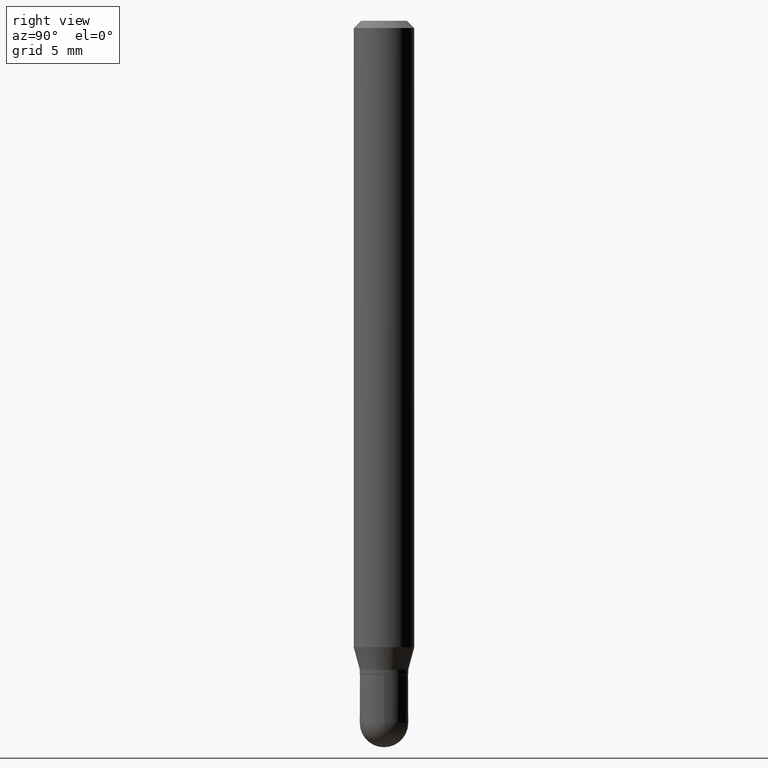
[diagram: clean part render]
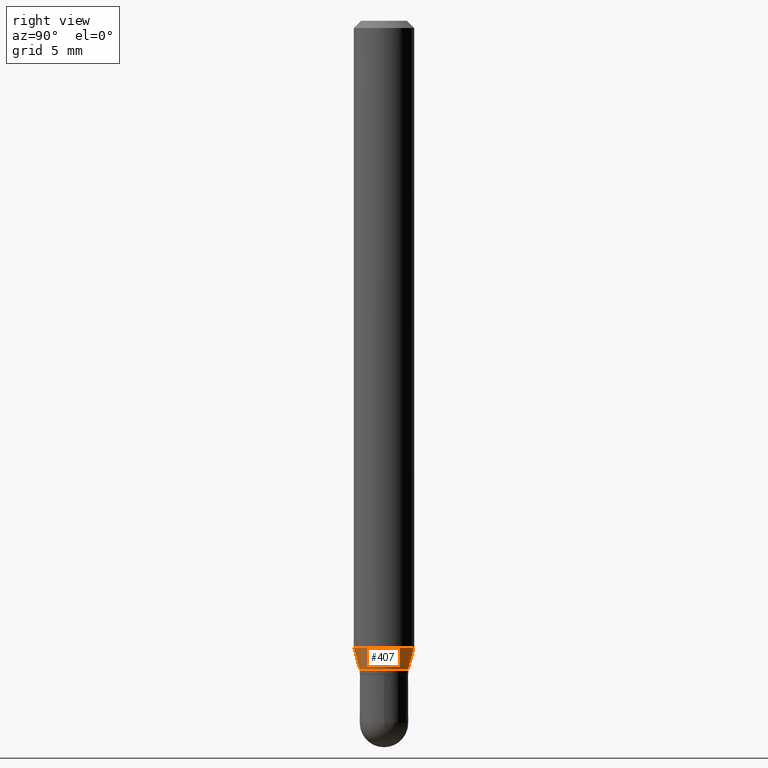
[diagram: same view with one face highlighted and labeled with its STEP entity id]
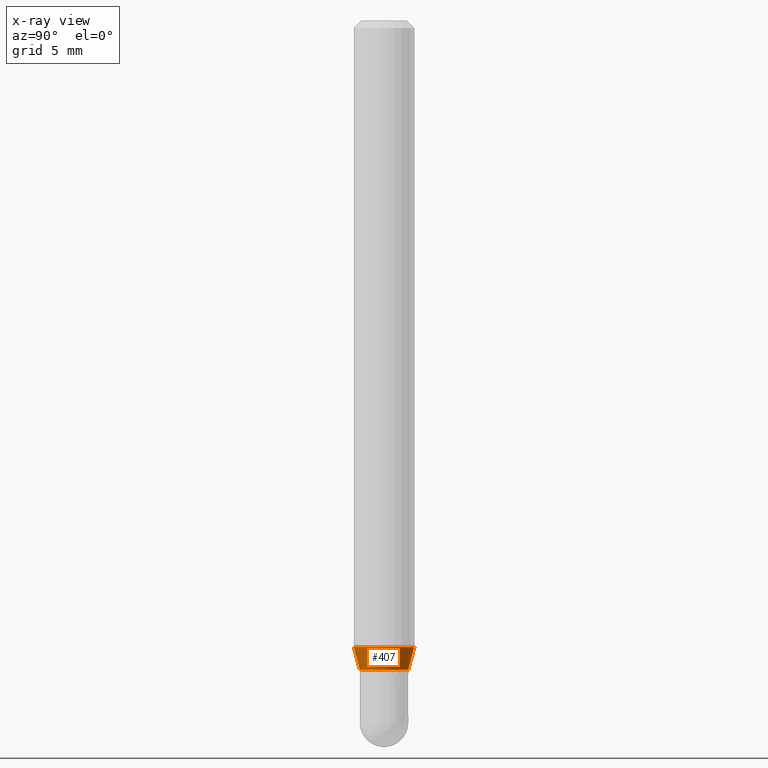
[diagram: x-ray of the same camera — body ghosted, the highlighted face saturated]
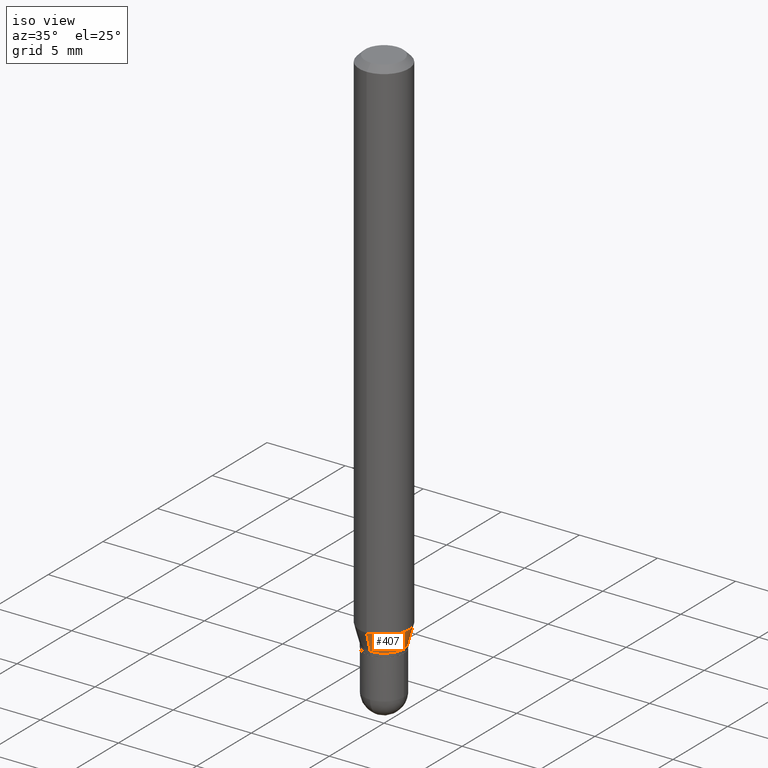
[diagram: same view with one face highlighted and labeled with its STEP entity id]
A machine part, right view. The second image highlights one B-rep face of the part: STEP entity #407.
The next image is the same camera in x-ray: the body ghosted, the highlighted face saturated — about 0% of this face is hidden behind the body in this view.
A second angle (iso view) of the same face is appended — the face is thin or edge-on in the first view.
In plain terms, the highlighted conical surface has half-angle 15 deg.
Its self-contained STEP definition (entity closure, byte-faithful):
#45 = VERTEX_POINT ( 'NONE', #162 ) ;
#50 = CARTESIAN_POINT ( 'NONE',  ( 3.162681023670509800E-29, -4.515940750840297433E-15, -1.293349364905389320 ) ) ;
#67 = CARTESIAN_POINT ( 'NONE',  ( -4.364351673553598192E-16, -0.06250000000000448253, -1.293349364905389098 ) ) ;
#73 = CIRCLE ( 'NONE', #413, 0.04999999999999992645 ) ;
#75 = DIRECTION ( 'NONE',  ( -6.982962677686267499E-15, -1.000000000000000000, 5.463695987328534326E-15 ) ) ;
#81 = CARTESIAN_POINT ( 'NONE',  ( 3.996802888650882640E-16, 0.04999999999999524963, -1.340000000000000746 ) ) ;
#91 = EDGE_LOOP ( 'NONE', ( #303, #345, #501, #313 ) ) ;
#95 = AXIS2_PLACEMENT_3D ( 'NONE', #371, #508, #75 ) ;
#101 = LINE ( 'NONE', #105, #408 ) ;
#104 = DIRECTION ( 'NONE',  ( -6.982962677686265922E-15, -1.000000000000000000, 4.370956789862821150E-15 ) ) ;
#105 = CARTESIAN_POINT ( 'NONE',  ( -3.491481338842800555E-16, -0.05000000000000460326, -1.340000000000000080 ) ) ;
#154 = EDGE_CURVE ( 'NONE', #486, #45, #218, .T. ) ;
#160 = CARTESIAN_POINT ( 'NONE',  ( -3.491481338842800555E-16, -0.05000000000000460326, -1.340000000000000080 ) ) ;
#162 = CARTESIAN_POINT ( 'NONE',  ( 4.440892098500943678E-16, 0.06249999999999551054, -1.293349364905389765 ) ) ;
#211 = CONICAL_SURFACE ( 'NONE', #95, 0.04999999999999992645, 0.2617993877991504625 ) ;
#218 = LINE ( 'NONE', #351, #470 ) ;
#229 = CARTESIAN_POINT ( 'NONE',  ( 3.276757762995075475E-29, -4.678829069954094324E-15, -1.340000000000000524 ) ) ;
#246 = EDGE_CURVE ( 'NONE', #367, #377, #101, .T. ) ;
#254 = EDGE_CURVE ( 'NONE', #367, #486, #73, .T. ) ;
#277 = DIRECTION ( 'NONE',  ( -2.445341614175428300E-29, 3.491663485040367379E-15, 1.000000000000000000 ) ) ;
#288 = AXIS2_PLACEMENT_3D ( 'NONE', #50, #352, #104 ) ;
#289 = FACE_OUTER_BOUND ( 'NONE', #91, .T. ) ;
#303 = ORIENTED_EDGE ( 'NONE', *, *, #254, .T. ) ;
#313 = ORIENTED_EDGE ( 'NONE', *, *, #246, .F. ) ;
#320 = DIRECTION ( 'NONE',  ( 1.839019923739601499E-15, 0.2588190451025251249, 0.9659258262890670910 ) ) ;
#345 = ORIENTED_EDGE ( 'NONE', *, *, #154, .T. ) ;
#351 = CARTESIAN_POINT ( 'NONE',  ( 3.552713678800822587E-16, 0.04999999999999524963, -1.340000000000000746 ) ) ;
#352 = DIRECTION ( 'NONE',  ( -2.445341614175428300E-29, 3.491663485040367379E-15, 1.000000000000000000 ) ) ;
#367 = VERTEX_POINT ( 'NONE', #160 ) ;
#371 = CARTESIAN_POINT ( 'NONE',  ( 3.276757762995075475E-29, -4.678829069954094324E-15, -1.340000000000000524 ) ) ;
#377 = VERTEX_POINT ( 'NONE', #67 ) ;
#394 = CIRCLE ( 'NONE', #288, 0.06250000000000000000 ) ;
#407 = ADVANCED_FACE ( 'NONE', ( #289 ), #211, .T. ) ;
#408 = VECTOR ( 'NONE', #425, 39.37007874015748854 ) ;
#413 = AXIS2_PLACEMENT_3D ( 'NONE', #229, #277, #428 ) ;
#425 = DIRECTION ( 'NONE',  ( -1.807323732225331323E-15, -0.2588190451025183525, 0.9659258262890689783 ) ) ;
#428 = DIRECTION ( 'NONE',  ( -6.982962677686267499E-15, -1.000000000000000000, 5.463695987328534326E-15 ) ) ;
#470 = VECTOR ( 'NONE', #320, 39.37007874015748854 ) ;
#472 = EDGE_CURVE ( 'NONE', #377, #45, #394, .T. ) ;
#486 = VERTEX_POINT ( 'NONE', #81 ) ;
#501 = ORIENTED_EDGE ( 'NONE', *, *, #472, .F. ) ;
#508 = DIRECTION ( 'NONE',  ( -2.445341614175428300E-29, 3.491663485040367379E-15, 1.000000000000000000 ) ) ;